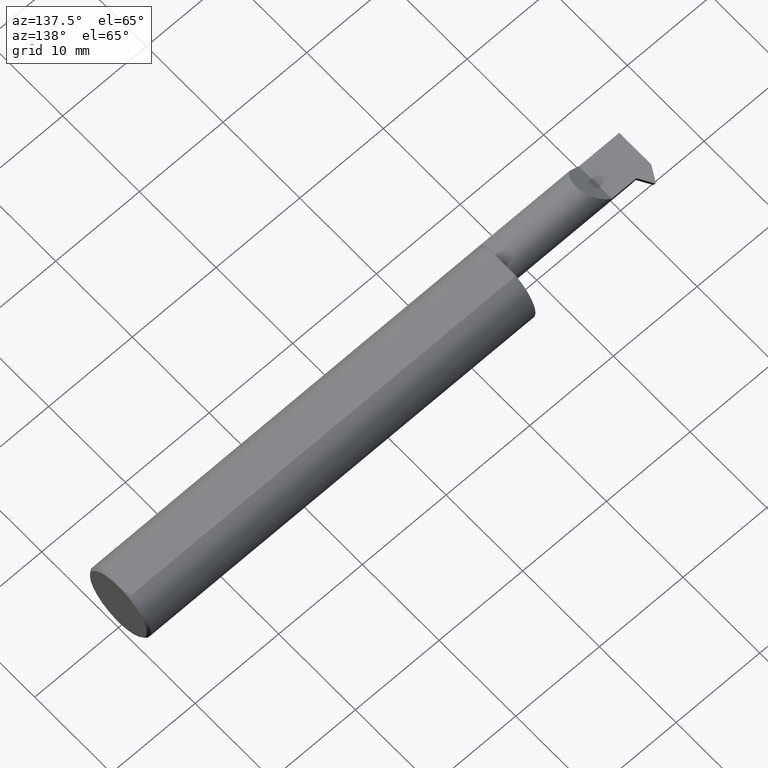
[diagram: clean part render]
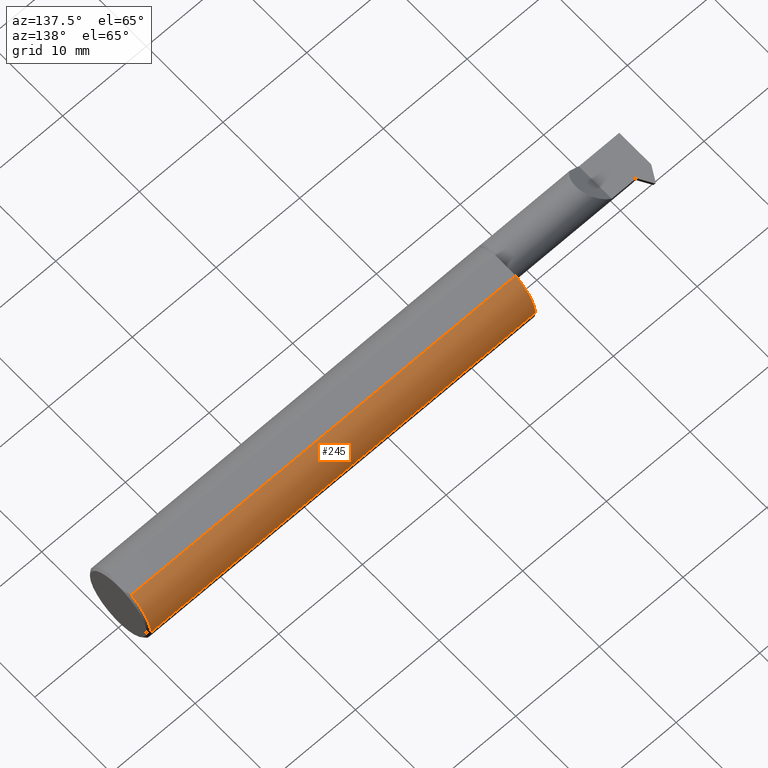
[diagram: same view with one face highlighted and labeled with its STEP entity id]
A machine part, auxiliary view. The second image highlights one B-rep face of the part: STEP entity #245.
In plain terms, the highlighted cylindrical surface (partial cylindrical patch) has radius 3.9649 mm, axis along (1, 0, -0).
Its self-contained STEP definition (entity closure, byte-faithful):
#23 = CARTESIAN_POINT ( 'NONE',  ( -1.820000000000000284, 0.1561000000000000443, 0.000000000000000000 ) ) ;
#26 = DIRECTION ( 'NONE',  ( -1.000000000000000000, -1.224646799147319927E-16, 0.000000000000000000 ) ) ;
#27 = ORIENTED_EDGE ( 'NONE', *, *, #708, .T. ) ;
#30 = DIRECTION ( 'NONE',  ( -1.000000000000000000, -1.224646799147352961E-16, 0.000000000000000000 ) ) ;
#77 = AXIS2_PLACEMENT_3D ( 'NONE', #574, #168, #96 ) ;
#96 = DIRECTION ( 'NONE',  ( 0.000000000000000000, -1.000000000000000000, -1.776356839400250465E-15 ) ) ;
#118 = CYLINDRICAL_SURFACE ( 'NONE', #390, 0.1561000000000000165 ) ;
#122 = DIRECTION ( 'NONE',  ( 1.000000000000000000, 1.224646799147352961E-16, -0.000000000000000000 ) ) ;
#150 = VERTEX_POINT ( 'NONE', #463 ) ;
#168 = DIRECTION ( 'NONE',  ( 1.000000000000000000, 1.301231752219315598E-17, 0.000000000000000000 ) ) ;
#180 = ORIENTED_EDGE ( 'NONE', *, *, #531, .F. ) ;
#215 = VERTEX_POINT ( 'NONE', #670 ) ;
#227 = ORIENTED_EDGE ( 'NONE', *, *, #368, .F. ) ;
#245 = ADVANCED_FACE ( 'NONE', ( #726 ), #118, .T. ) ;
#366 = CARTESIAN_POINT ( 'NONE',  ( -0.009999999999999073866, 2.437047130303233649E-16, 0.000000000000000000 ) ) ;
#368 = EDGE_CURVE ( 'NONE', #475, #215, #479, .T. ) ;
#387 = CARTESIAN_POINT ( 'NONE',  ( -2.500000000000000000, -6.123233995736767268E-17, 0.000000000000000000 ) ) ;
#390 = AXIS2_PLACEMENT_3D ( 'NONE', #387, #122, #721 ) ;
#401 = DIRECTION ( 'NONE',  ( 1.000000000000000000, 1.224646799147352961E-16, -0.000000000000000000 ) ) ;
#463 = CARTESIAN_POINT ( 'NONE',  ( -0.009999999999999073866, 0.05497272050753925637, 0.1461000000000000076 ) ) ;
#475 = VERTEX_POINT ( 'NONE', #23 ) ;
#479 = LINE ( 'NONE', #620, #610 ) ;
#508 = VERTEX_POINT ( 'NONE', #787 ) ;
#531 = EDGE_CURVE ( 'NONE', #150, #508, #776, .T. ) ;
#536 = VECTOR ( 'NONE', #30, 39.37007874015748143 ) ;
#564 = DIRECTION ( 'NONE',  ( -1.230512889522860364E-16, 1.000000000000000000, 0.000000000000000000 ) ) ;
#574 = CARTESIAN_POINT ( 'NONE',  ( -1.820000000000000284, 2.204364238465230892E-17, 0.000000000000000000 ) ) ;
#610 = VECTOR ( 'NONE', #401, 39.37007874015748143 ) ;
#615 = ORIENTED_EDGE ( 'NONE', *, *, #774, .T. ) ;
#620 = CARTESIAN_POINT ( 'NONE',  ( -2.500000000000000000, 0.1560999999999999333, 0.000000000000000000 ) ) ;
#670 = CARTESIAN_POINT ( 'NONE',  ( -0.009999999999999092948, 0.1561000000000002386, 0.000000000000000000 ) ) ;
#691 = CIRCLE ( 'NONE', #77, 0.1561000000000000165 ) ;
#701 = EDGE_LOOP ( 'NONE', ( #227, #615, #180, #27 ) ) ;
#708 = EDGE_CURVE ( 'NONE', #150, #215, #838, .T. ) ;
#712 = AXIS2_PLACEMENT_3D ( 'NONE', #366, #26, #564 ) ;
#720 = CARTESIAN_POINT ( 'NONE',  ( -2.500000000000000000, 0.05497272050753895106, 0.1461000000000000076 ) ) ;
#721 = DIRECTION ( 'NONE',  ( 0.000000000000000000, 1.000000000000000000, 0.000000000000000000 ) ) ;
#726 = FACE_OUTER_BOUND ( 'NONE', #701, .T. ) ;
#774 = EDGE_CURVE ( 'NONE', #475, #508, #691, .T. ) ;
#776 = LINE ( 'NONE', #720, #536 ) ;
#787 = CARTESIAN_POINT ( 'NONE',  ( -1.820000000000000284, 0.05497272050753924943, 0.1461000000000000354 ) ) ;
#838 = CIRCLE ( 'NONE', #712, 0.1561000000000000165 ) ;